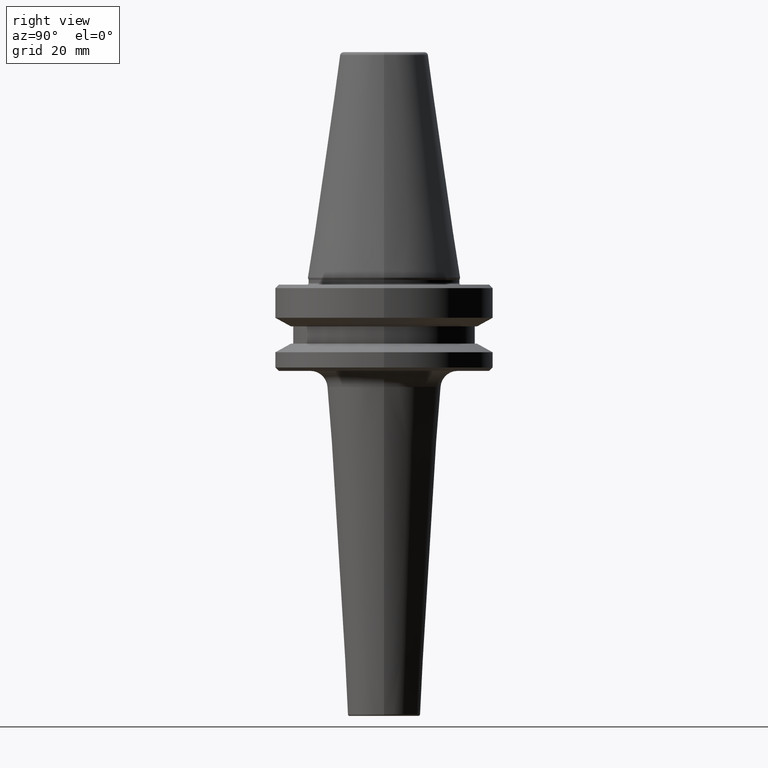
[diagram: clean part render]
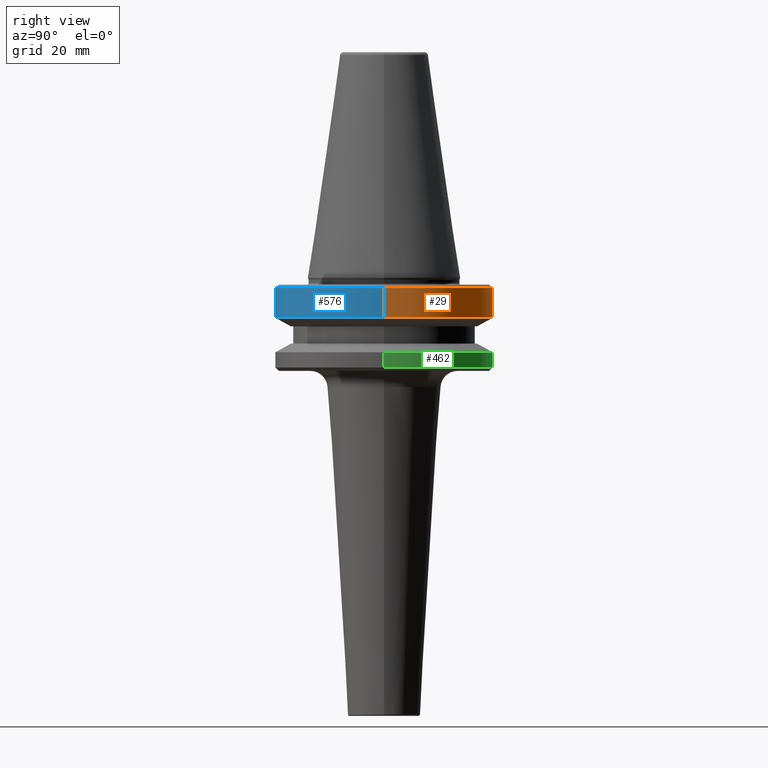
[diagram: same view with three faces highlighted in distinct colors, each labeled with its STEP entity id]
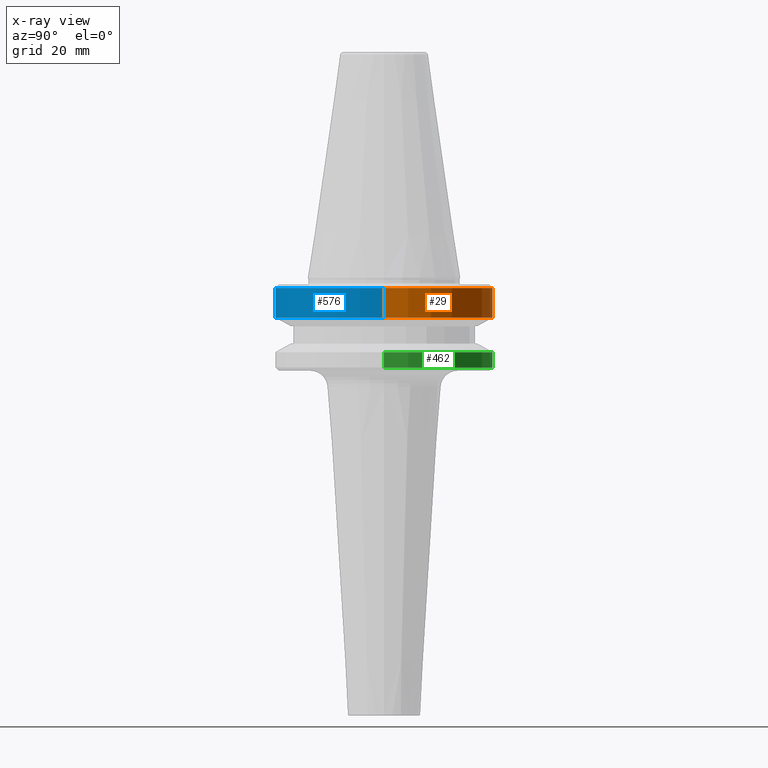
[diagram: x-ray of the same camera — body ghosted, the three highlighted faces saturated]
A machine part, right view with three faces highlighted in distinct colors.
The next image is the same camera in x-ray (body ghosted, the three faces saturated) — at least one of them is partly hidden behind the body in this view.
Their STEP definitions:

[orange] entity #29 — the highlighted cylindrical surface (partial cylindrical patch) has radius 31.5 mm, axis along (-0, -0, 1).
#15 = ORIENTED_EDGE ( 'NONE', *, *, #234, .F. ) ;
#29 = ADVANCED_FACE ( 'NONE', ( #864 ), #541, .T. ) ;
#42 = DIRECTION ( 'NONE',  ( -0.0000000000000000000, -0.0000000000000000000, 1.000000000000000000 ) ) ;
#47 = CARTESIAN_POINT ( 'NONE',  ( -31.50000000000008500, 3.857637417314172900E-015, 6.357346922996331500 ) ) ;
#60 = DIRECTION ( 'NONE',  ( -0.0000000000000000000, -0.0000000000000000000, 1.000000000000000000 ) ) ;
#83 = DIRECTION ( 'NONE',  ( 1.000000000000000000, 0.0000000000000000000, 0.0000000000000000000 ) ) ;
#109 = ORIENTED_EDGE ( 'NONE', *, *, #659, .F. ) ;
#145 = ORIENTED_EDGE ( 'NONE', *, *, #265, .T. ) ;
#220 = CARTESIAN_POINT ( 'NONE',  ( 31.50000000000008500, 0.0000000000000000000, -68.40000000000046000 ) ) ;
#234 = EDGE_CURVE ( 'NONE', #835, #919, #371, .T. ) ;
#245 = AXIS2_PLACEMENT_3D ( 'NONE', #380, #60, #83 ) ;
#265 = EDGE_CURVE ( 'NONE', #732, #561, #582, .T. ) ;
#321 = VECTOR ( 'NONE', #821, 1000.000000000000000 ) ;
#345 = DIRECTION ( 'NONE',  ( 1.000000000000000000, 0.0000000000000000000, 0.0000000000000000000 ) ) ;
#371 = CIRCLE ( 'NONE', #1033, 31.50000000000008500 ) ;
#380 = CARTESIAN_POINT ( 'NONE',  ( 0.0000000000000000000, 0.0000000000000000000, -76.99985799368391800 ) ) ;
#408 = VECTOR ( 'NONE', #42, 1000.000000000000000 ) ;
#433 = EDGE_CURVE ( 'NONE', #561, #919, #922, .T. ) ;
#496 = CARTESIAN_POINT ( 'NONE',  ( 0.0000000000000000000, 0.0000000000000000000, 6.357346922996331500 ) ) ;
#509 = DIRECTION ( 'NONE',  ( -0.0000000000000000000, -0.0000000000000000000, 1.000000000000000000 ) ) ;
#514 = EDGE_LOOP ( 'NONE', ( #145, #931, #15, #109 ) ) ;
#541 = CYLINDRICAL_SURFACE ( 'NONE', #1024, 31.50000000000008500 ) ;
#546 = CARTESIAN_POINT ( 'NONE',  ( 31.50000000000008500, 0.0000000000000000000, 6.357346922996331500 ) ) ;
#561 = VERTEX_POINT ( 'NONE', #1041 ) ;
#562 = LINE ( 'NONE', #546, #408 ) ;
#582 = CIRCLE ( 'NONE', #245, 31.50000000000008500 ) ;
#611 = DIRECTION ( 'NONE',  ( 1.000000000000000000, 0.0000000000000000000, 0.0000000000000000000 ) ) ;
#613 = CARTESIAN_POINT ( 'NONE',  ( 31.50000000000008500, 0.0000000000000000000, -76.99985799368391800 ) ) ;
#646 = DIRECTION ( 'NONE',  ( -0.0000000000000000000, -0.0000000000000000000, 1.000000000000000000 ) ) ;
#659 = EDGE_CURVE ( 'NONE', #732, #835, #562, .T. ) ;
#732 = VERTEX_POINT ( 'NONE', #613 ) ;
#746 = CARTESIAN_POINT ( 'NONE',  ( 0.0000000000000000000, 0.0000000000000000000, -68.40000000000046000 ) ) ;
#778 = CARTESIAN_POINT ( 'NONE',  ( -31.50000000000008500, 3.857637417314172900E-015, -68.40000000000046000 ) ) ;
#821 = DIRECTION ( 'NONE',  ( -0.0000000000000000000, -0.0000000000000000000, 1.000000000000000000 ) ) ;
#835 = VERTEX_POINT ( 'NONE', #220 ) ;
#864 = FACE_OUTER_BOUND ( 'NONE', #514, .T. ) ;
#919 = VERTEX_POINT ( 'NONE', #778 ) ;
#922 = LINE ( 'NONE', #47, #321 ) ;
#931 = ORIENTED_EDGE ( 'NONE', *, *, #433, .T. ) ;
#1024 = AXIS2_PLACEMENT_3D ( 'NONE', #496, #509, #345 ) ;
#1033 = AXIS2_PLACEMENT_3D ( 'NONE', #746, #646, #611 ) ;
#1041 = CARTESIAN_POINT ( 'NONE',  ( -31.50000000000008500, 3.857637417314172900E-015, -76.99985799368391800 ) ) ;

[blue] entity #576 — the highlighted cylindrical surface (partial cylindrical patch) has radius 31.5 mm, axis along (-0, -0, 1).
#42 = DIRECTION ( 'NONE',  ( -0.0000000000000000000, -0.0000000000000000000, 1.000000000000000000 ) ) ;
#47 = CARTESIAN_POINT ( 'NONE',  ( -31.50000000000008500, 3.857637417314172900E-015, 6.357346922996331500 ) ) ;
#63 = DIRECTION ( 'NONE',  ( -0.0000000000000000000, -0.0000000000000000000, 1.000000000000000000 ) ) ;
#104 = EDGE_CURVE ( 'NONE', #919, #835, #287, .T. ) ;
#160 = DIRECTION ( 'NONE',  ( -0.0000000000000000000, -0.0000000000000000000, 1.000000000000000000 ) ) ;
#173 = ORIENTED_EDGE ( 'NONE', *, *, #659, .T. ) ;
#179 = AXIS2_PLACEMENT_3D ( 'NONE', #655, #63, #863 ) ;
#208 = CARTESIAN_POINT ( 'NONE',  ( 0.0000000000000000000, 0.0000000000000000000, 6.357346922996331500 ) ) ;
#220 = CARTESIAN_POINT ( 'NONE',  ( 31.50000000000008500, 0.0000000000000000000, -68.40000000000046000 ) ) ;
#287 = CIRCLE ( 'NONE', #179, 31.50000000000008500 ) ;
#321 = VECTOR ( 'NONE', #821, 1000.000000000000000 ) ;
#408 = VECTOR ( 'NONE', #42, 1000.000000000000000 ) ;
#418 = AXIS2_PLACEMENT_3D ( 'NONE', #208, #160, #467 ) ;
#433 = EDGE_CURVE ( 'NONE', #561, #919, #922, .T. ) ;
#458 = CIRCLE ( 'NONE', #885, 31.50000000000008500 ) ;
#467 = DIRECTION ( 'NONE',  ( 1.000000000000000000, 0.0000000000000000000, 0.0000000000000000000 ) ) ;
#494 = EDGE_CURVE ( 'NONE', #561, #732, #458, .T. ) ;
#546 = CARTESIAN_POINT ( 'NONE',  ( 31.50000000000008500, 0.0000000000000000000, 6.357346922996331500 ) ) ;
#561 = VERTEX_POINT ( 'NONE', #1041 ) ;
#562 = LINE ( 'NONE', #546, #408 ) ;
#576 = ADVANCED_FACE ( 'NONE', ( #606 ), #829, .T. ) ;
#583 = EDGE_LOOP ( 'NONE', ( #675, #599, #173, #950 ) ) ;
#599 = ORIENTED_EDGE ( 'NONE', *, *, #494, .T. ) ;
#606 = FACE_OUTER_BOUND ( 'NONE', #583, .T. ) ;
#613 = CARTESIAN_POINT ( 'NONE',  ( 31.50000000000008500, 0.0000000000000000000, -76.99985799368391800 ) ) ;
#655 = CARTESIAN_POINT ( 'NONE',  ( 0.0000000000000000000, 0.0000000000000000000, -68.40000000000046000 ) ) ;
#659 = EDGE_CURVE ( 'NONE', #732, #835, #562, .T. ) ;
#675 = ORIENTED_EDGE ( 'NONE', *, *, #433, .F. ) ;
#702 = DIRECTION ( 'NONE',  ( 1.000000000000000000, 0.0000000000000000000, 0.0000000000000000000 ) ) ;
#732 = VERTEX_POINT ( 'NONE', #613 ) ;
#778 = CARTESIAN_POINT ( 'NONE',  ( -31.50000000000008500, 3.857637417314172900E-015, -68.40000000000046000 ) ) ;
#821 = DIRECTION ( 'NONE',  ( -0.0000000000000000000, -0.0000000000000000000, 1.000000000000000000 ) ) ;
#829 = CYLINDRICAL_SURFACE ( 'NONE', #418, 31.50000000000008500 ) ;
#835 = VERTEX_POINT ( 'NONE', #220 ) ;
#863 = DIRECTION ( 'NONE',  ( 1.000000000000000000, 0.0000000000000000000, 0.0000000000000000000 ) ) ;
#885 = AXIS2_PLACEMENT_3D ( 'NONE', #1050, #923, #702 ) ;
#919 = VERTEX_POINT ( 'NONE', #778 ) ;
#922 = LINE ( 'NONE', #47, #321 ) ;
#923 = DIRECTION ( 'NONE',  ( -0.0000000000000000000, -0.0000000000000000000, 1.000000000000000000 ) ) ;
#950 = ORIENTED_EDGE ( 'NONE', *, *, #104, .F. ) ;
#1041 = CARTESIAN_POINT ( 'NONE',  ( -31.50000000000008500, 3.857637417314172900E-015, -76.99985799368391800 ) ) ;
#1050 = CARTESIAN_POINT ( 'NONE',  ( 0.0000000000000000000, 0.0000000000000000000, -76.99985799368391800 ) ) ;

[green] entity #462 — the highlighted cylindrical surface (partial cylindrical patch) has radius 31.5 mm, axis along (-0, -0, 1).
#4 = ORIENTED_EDGE ( 'NONE', *, *, #393, .F. ) ;
#66 = AXIS2_PLACEMENT_3D ( 'NONE', #279, #989, #302 ) ;
#100 = EDGE_LOOP ( 'NONE', ( #841, #315, #4, #903 ) ) ;
#103 = CARTESIAN_POINT ( 'NONE',  ( 0.0000000000000000000, 0.0000000000000000000, -91.40000000000037500 ) ) ;
#121 = VERTEX_POINT ( 'NONE', #731 ) ;
#161 = VERTEX_POINT ( 'NONE', #636 ) ;
#233 = VECTOR ( 'NONE', #1007, 1000.000000000000000 ) ;
#258 = CARTESIAN_POINT ( 'NONE',  ( 31.50000000000008500, 0.0000000000000000000, 6.357346922996331500 ) ) ;
#273 = DIRECTION ( 'NONE',  ( 1.000000000000000000, 0.0000000000000000000, 0.0000000000000000000 ) ) ;
#279 = CARTESIAN_POINT ( 'NONE',  ( 0.0000000000000000000, 0.0000000000000000000, 6.357346922996331500 ) ) ;
#302 = DIRECTION ( 'NONE',  ( 1.000000000000000000, 0.0000000000000000000, 0.0000000000000000000 ) ) ;
#315 = ORIENTED_EDGE ( 'NONE', *, *, #905, .T. ) ;
#367 = CIRCLE ( 'NONE', #628, 31.50000000000008500 ) ;
#393 = EDGE_CURVE ( 'NONE', #121, #892, #760, .T. ) ;
#404 = LINE ( 'NONE', #258, #604 ) ;
#422 = EDGE_CURVE ( 'NONE', #524, #161, #367, .T. ) ;
#445 = DIRECTION ( 'NONE',  ( 1.000000000000000000, 0.0000000000000000000, 0.0000000000000000000 ) ) ;
#462 = ADVANCED_FACE ( 'NONE', ( #479 ), #666, .T. ) ;
#479 = FACE_OUTER_BOUND ( 'NONE', #100, .T. ) ;
#524 = VERTEX_POINT ( 'NONE', #673 ) ;
#536 = CARTESIAN_POINT ( 'NONE',  ( -31.50000000000008500, 3.857637417314172900E-015, -87.00014200631733300 ) ) ;
#540 = DIRECTION ( 'NONE',  ( -0.0000000000000000000, -0.0000000000000000000, 1.000000000000000000 ) ) ;
#543 = CARTESIAN_POINT ( 'NONE',  ( -31.50000000000008500, 3.857637417314172900E-015, 6.357346922996331500 ) ) ;
#604 = VECTOR ( 'NONE', #540, 1000.000000000000000 ) ;
#628 = AXIS2_PLACEMENT_3D ( 'NONE', #103, #925, #445 ) ;
#636 = CARTESIAN_POINT ( 'NONE',  ( -31.50000000000008500, 3.857637417314172900E-015, -91.40000000000037500 ) ) ;
#666 = CYLINDRICAL_SURFACE ( 'NONE', #66, 31.50000000000008500 ) ;
#673 = CARTESIAN_POINT ( 'NONE',  ( 31.50000000000008500, 0.0000000000000000000, -91.40000000000037500 ) ) ;
#731 = CARTESIAN_POINT ( 'NONE',  ( 31.50000000000008500, 0.0000000000000000000, -87.00014200631733300 ) ) ;
#740 = AXIS2_PLACEMENT_3D ( 'NONE', #908, #855, #273 ) ;
#760 = CIRCLE ( 'NONE', #740, 31.50000000000008500 ) ;
#841 = ORIENTED_EDGE ( 'NONE', *, *, #422, .T. ) ;
#855 = DIRECTION ( 'NONE',  ( -0.0000000000000000000, -0.0000000000000000000, 1.000000000000000000 ) ) ;
#892 = VERTEX_POINT ( 'NONE', #536 ) ;
#903 = ORIENTED_EDGE ( 'NONE', *, *, #924, .F. ) ;
#905 = EDGE_CURVE ( 'NONE', #161, #892, #1048, .T. ) ;
#908 = CARTESIAN_POINT ( 'NONE',  ( 0.0000000000000000000, 0.0000000000000000000, -87.00014200631733300 ) ) ;
#924 = EDGE_CURVE ( 'NONE', #524, #121, #404, .T. ) ;
#925 = DIRECTION ( 'NONE',  ( -0.0000000000000000000, -0.0000000000000000000, 1.000000000000000000 ) ) ;
#989 = DIRECTION ( 'NONE',  ( -0.0000000000000000000, -0.0000000000000000000, 1.000000000000000000 ) ) ;
#1007 = DIRECTION ( 'NONE',  ( -0.0000000000000000000, -0.0000000000000000000, 1.000000000000000000 ) ) ;
#1048 = LINE ( 'NONE', #543, #233 ) ;